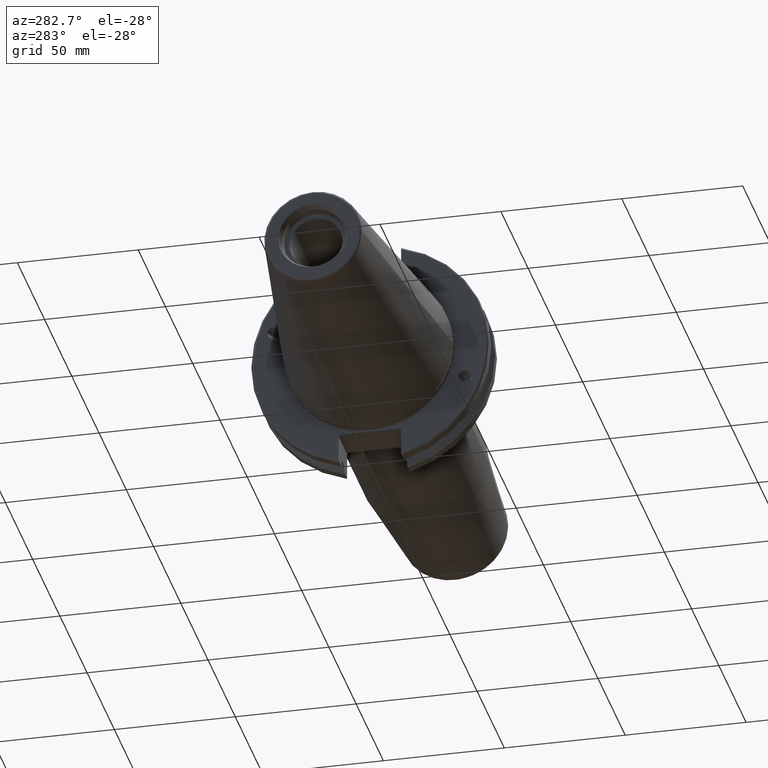
[diagram: clean part render]
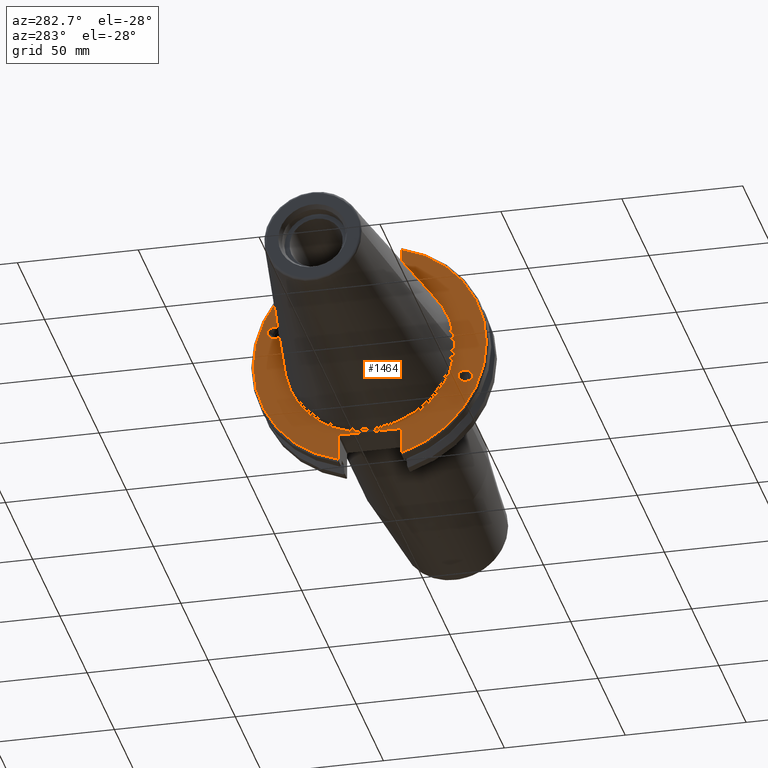
[diagram: same view with one face highlighted and labeled with its STEP entity id]
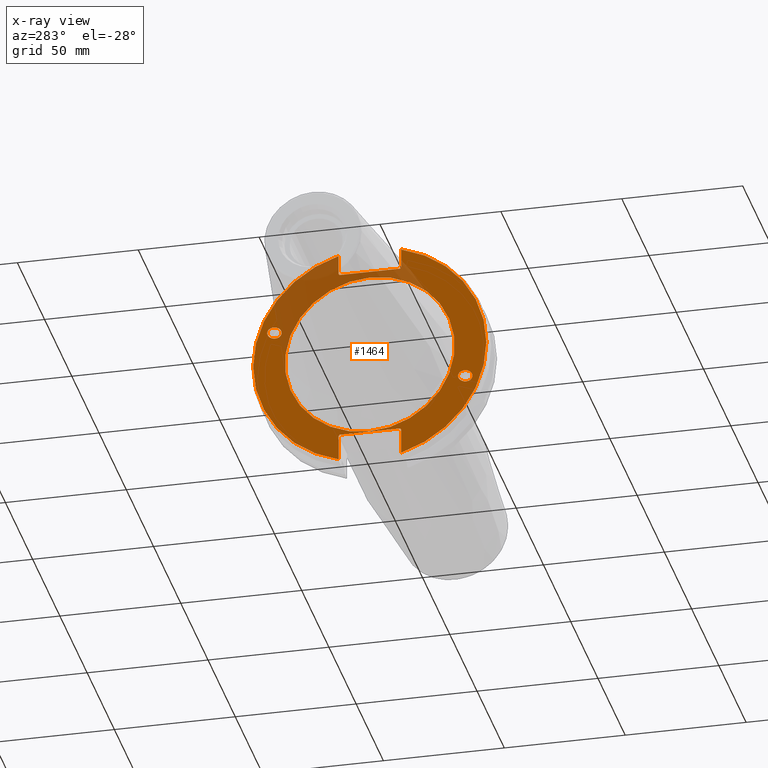
[diagram: x-ray of the same camera — body ghosted, the highlighted face saturated]
A machine part, auxiliary view. The second image highlights one B-rep face of the part: STEP entity #1464.
The next image is the same camera in x-ray: the body ghosted, the highlighted face saturated — about 21% of this face is hidden behind the body in this view.
In plain terms, the highlighted planar face has unit normal (-1, 0, 0).
Its self-contained STEP definition (entity closure, byte-faithful):
#31=ELLIPSE('',#1582,3.05193647190364,2.5);
#32=ELLIPSE('',#1616,3.05193647190364,2.5);
#126=LINE('',#2728,#216);
#127=LINE('',#2730,#217);
#128=LINE('',#2732,#218);
#129=LINE('',#2734,#219);
#130=LINE('',#2736,#220);
#131=LINE('',#2740,#221);
#132=LINE('',#2742,#222);
#133=LINE('',#2744,#223);
#134=LINE('',#2746,#224);
#135=LINE('',#2747,#225);
#216=VECTOR('',#1921,10.);
#217=VECTOR('',#1922,10.);
#218=VECTOR('',#1923,10.);
#219=VECTOR('',#1924,10.);
#220=VECTOR('',#1925,10.);
#221=VECTOR('',#1928,10.);
#222=VECTOR('',#1929,10.);
#223=VECTOR('',#1930,10.);
#224=VECTOR('',#1931,10.);
#225=VECTOR('',#1932,10.);
#303=FACE_BOUND('',#484,.T.);
#304=FACE_BOUND('',#485,.T.);
#305=FACE_BOUND('',#486,.T.);
#321=PLANE('',#1622);
#385=FACE_OUTER_BOUND('',#483,.T.);
#483=EDGE_LOOP('',(#1177,#1178,#1179,#1180,#1181,#1182,#1183,#1184,#1185,
#1186,#1187,#1188));
#484=EDGE_LOOP('',(#1189));
#485=EDGE_LOOP('',(#1190));
#486=EDGE_LOOP('',(#1191));
#581=CIRCLE('',#1620,35.125);
#583=CIRCLE('',#1623,48.2125);
#584=CIRCLE('',#1624,48.2125);
#661=VERTEX_POINT('',#2453);
#699=VERTEX_POINT('',#2712);
#702=VERTEX_POINT('',#2719);
#703=VERTEX_POINT('',#2724);
#704=VERTEX_POINT('',#2725);
#705=VERTEX_POINT('',#2727);
#706=VERTEX_POINT('',#2729);
#707=VERTEX_POINT('',#2731);
#708=VERTEX_POINT('',#2733);
#709=VERTEX_POINT('',#2735);
#710=VERTEX_POINT('',#2737);
#711=VERTEX_POINT('',#2739);
#712=VERTEX_POINT('',#2741);
#713=VERTEX_POINT('',#2743);
#714=VERTEX_POINT('',#2745);
#824=EDGE_CURVE('',#661,#661,#31,.T.);
#875=EDGE_CURVE('',#699,#699,#32,.T.);
#878=EDGE_CURVE('',#702,#702,#581,.T.);
#880=EDGE_CURVE('',#703,#704,#583,.T.);
#881=EDGE_CURVE('',#703,#705,#126,.T.);
#882=EDGE_CURVE('',#706,#705,#127,.T.);
#883=EDGE_CURVE('',#706,#707,#128,.T.);
#884=EDGE_CURVE('',#708,#707,#129,.T.);
#885=EDGE_CURVE('',#708,#709,#130,.T.);
#886=EDGE_CURVE('',#710,#709,#584,.T.);
#887=EDGE_CURVE('',#710,#711,#131,.T.);
#888=EDGE_CURVE('',#712,#711,#132,.T.);
#889=EDGE_CURVE('',#712,#713,#133,.T.);
#890=EDGE_CURVE('',#714,#713,#134,.T.);
#891=EDGE_CURVE('',#714,#704,#135,.T.);
#1177=ORIENTED_EDGE('',*,*,#880,.F.);
#1178=ORIENTED_EDGE('',*,*,#881,.T.);
#1179=ORIENTED_EDGE('',*,*,#882,.F.);
#1180=ORIENTED_EDGE('',*,*,#883,.T.);
#1181=ORIENTED_EDGE('',*,*,#884,.F.);
#1182=ORIENTED_EDGE('',*,*,#885,.T.);
#1183=ORIENTED_EDGE('',*,*,#886,.F.);
#1184=ORIENTED_EDGE('',*,*,#887,.T.);
#1185=ORIENTED_EDGE('',*,*,#888,.F.);
#1186=ORIENTED_EDGE('',*,*,#889,.T.);
#1187=ORIENTED_EDGE('',*,*,#890,.F.);
#1188=ORIENTED_EDGE('',*,*,#891,.T.);
#1189=ORIENTED_EDGE('',*,*,#824,.T.);
#1190=ORIENTED_EDGE('',*,*,#875,.T.);
#1191=ORIENTED_EDGE('',*,*,#878,.F.);
#1464=ADVANCED_FACE('',(#385,#303,#304,#305),#321,.T.);
#1582=AXIS2_PLACEMENT_3D('',#2455,#1821,#1822);
#1616=AXIS2_PLACEMENT_3D('',#2714,#1905,#1906);
#1620=AXIS2_PLACEMENT_3D('',#2721,#1913,#1914);
#1622=AXIS2_PLACEMENT_3D('',#2723,#1917,#1918);
#1623=AXIS2_PLACEMENT_3D('',#2726,#1919,#1920);
#1624=AXIS2_PLACEMENT_3D('',#2738,#1926,#1927);
#1821=DIRECTION('center_axis',(1.,0.,0.));
#1822=DIRECTION('ref_axis',(0.,-0.939692620785908,-0.342020143325668));
#1905=DIRECTION('center_axis',(1.,0.,0.));
#1906=DIRECTION('ref_axis',(0.,0.939692620785908,0.342020143325669));
#1913=DIRECTION('center_axis',(-1.,0.,0.));
#1914=DIRECTION('ref_axis',(0.,-1.,1.83697019872103E-16));
#1917=DIRECTION('center_axis',(-1.,0.,0.));
#1918=DIRECTION('ref_axis',(0.,0.,1.));
#1919=DIRECTION('center_axis',(1.,0.,0.));
#1920=DIRECTION('ref_axis',(0.,-1.,1.60812264967664E-16));
#1921=DIRECTION('',(0.,0.,-1.));
#1922=DIRECTION('',(0.,-0.707106781186549,0.707106781186546));
#1923=DIRECTION('',(0.,1.,0.));
#1924=DIRECTION('',(0.,-0.707106781186549,-0.707106781186546));
#1925=DIRECTION('',(0.,0.,1.));
#1926=DIRECTION('center_axis',(1.,0.,0.));
#1927=DIRECTION('ref_axis',(0.,1.,-6.12323399573677E-17));
#1928=DIRECTION('',(0.,0.,1.));
#1929=DIRECTION('',(0.,0.707106781186549,-0.707106781186546));
#1930=DIRECTION('',(0.,-1.,0.));
#1931=DIRECTION('',(0.,0.707106781186549,0.707106781186546));
#1932=DIRECTION('',(0.,0.,-1.));
#2453=CARTESIAN_POINT('',(3.175,-36.5992078912529,-13.3210222701368));
#2455=CARTESIAN_POINT('Origin',(3.175,-39.4670900730082,-14.3648460196781));
#2712=CARTESIAN_POINT('',(3.175,36.5992078912529,13.3210222701368));
#2714=CARTESIAN_POINT('Origin',(3.175,39.4670900730082,14.3648460196781));
#2719=CARTESIAN_POINT('',(3.175,-4.30157188200508E-15,35.125));
#2721=CARTESIAN_POINT('Origin',(3.175,0.,0.));
#2723=CARTESIAN_POINT('Origin',(3.175,49.2125,0.));
#2724=CARTESIAN_POINT('',(3.175,-12.95,46.4407434937254));
#2725=CARTESIAN_POINT('',(3.175,-12.95,-46.4407434937254));
#2726=CARTESIAN_POINT('Origin',(3.175,0.,0.));
#2727=CARTESIAN_POINT('',(3.175,-12.95,38.219));
#2728=CARTESIAN_POINT('',(3.175,-12.95,18.8595));
#2729=CARTESIAN_POINT('',(3.175,-12.45,37.719));
#2730=CARTESIAN_POINT('',(3.175,12.2703750000001,12.998625));
#2731=CARTESIAN_POINT('',(3.175,12.45,37.719));
#2732=CARTESIAN_POINT('',(3.175,24.60625,37.719));
#2733=CARTESIAN_POINT('',(3.175,12.95,38.219));
#2734=CARTESIAN_POINT('',(3.175,12.335875,37.604875));
#2735=CARTESIAN_POINT('',(3.175,12.95,46.4407434937254));
#2736=CARTESIAN_POINT('',(3.175,12.95,18.8595));
#2737=CARTESIAN_POINT('',(3.175,12.95,-46.4407434937254));
#2738=CARTESIAN_POINT('Origin',(3.175,0.,0.));
#2739=CARTESIAN_POINT('',(3.175,12.95,-35.806));
#2740=CARTESIAN_POINT('',(3.175,12.95,-17.653));
#2741=CARTESIAN_POINT('',(3.175,12.45,-35.306));
#2742=CARTESIAN_POINT('',(3.175,12.939125,-35.795125));
#2743=CARTESIAN_POINT('',(3.175,-12.45,-35.306));
#2744=CARTESIAN_POINT('',(3.175,24.60625,-35.306));
#2745=CARTESIAN_POINT('',(3.175,-12.95,-35.806));
#2746=CARTESIAN_POINT('',(3.175,11.6671250000001,-11.188875));
#2747=CARTESIAN_POINT('',(3.175,-12.95,-17.653));